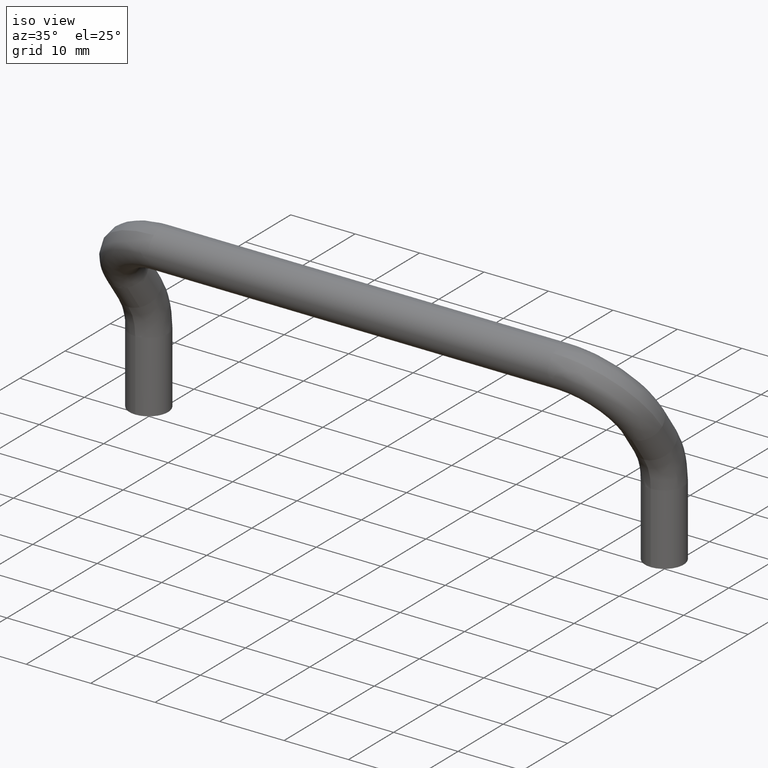
[diagram: clean part render]
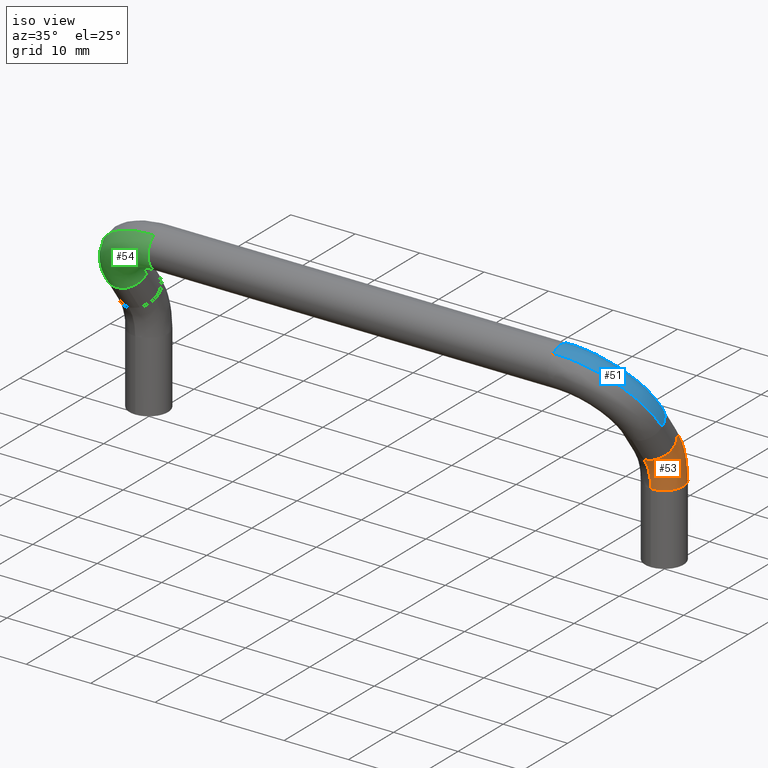
[diagram: same view with three faces highlighted in distinct colors, each labeled with its STEP entity id]
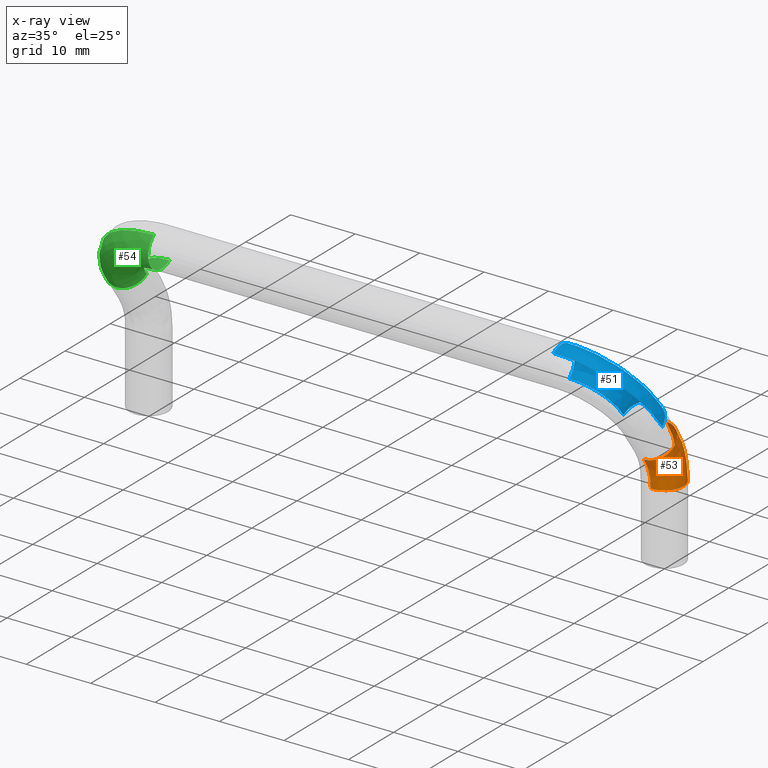
[diagram: x-ray of the same camera — body ghosted, the three highlighted faces saturated]
A machine part, iso view with three faces highlighted in distinct colors.
The next image is the same camera in x-ray (body ghosted, the three faces saturated) — at least one of them is partly hidden behind the body in this view.
Their STEP definitions:

[orange] entity #53 — the highlighted face is a freeform B-spline surface patch.
#53=ADVANCED_FACE('',(#199),#198,.T.);
#198=( BOUNDED_SURFACE() B_SPLINE_SURFACE( 2,2,((#490,#491,#492),(#493,#494,#495),(#496,#497,#498),(#499,#500,#501),(#502,#503,#504)), .UNSPECIFIED.,.F.,.F.,.F.) B_SPLINE_SURFACE_WITH_KNOTS((3,2,3),(3,3),(0.00000000000E+00,1.57079632679E+00,3.14159265359E+00),(0.00000000000E+00,1.14287214410E+00), .UNSPECIFIED. ) GEOMETRIC_REPRESENTATION_ITEM() RATIONAL_B_SPLINE_SURFACE(((1.00000000000E+00,8.41125156798E-01,1.00000000000E+00),(7.07106781187E-01,5.94765302199E-01,7.07106781187E-01),(1.00000000000E+00,8.41125156798E-01,1.00000000000E+00),(7.07106781187E-01,5.94765302199E-01,7.07106781187E-01),(1.00000000000E+00,8.41125156798E-01,1.00000000000E+00))) REPRESENTATION_ITEM('') SURFACE() );
#199=FACE_OUTER_BOUND('',#505,.T.);
#490=CARTESIAN_POINT('',(4.00000000001E+01,4.80976282318E+00,-1.76239206363E+00));
#491=CARTESIAN_POINT('',(4.00000000001E+01,1.30000000000E+01,-5.49804915882E+00));
#492=CARTESIAN_POINT('',(4.00000000001E+01,1.30000000000E+01,-1.44999999999E+01));
#493=CARTESIAN_POINT('',(4.30000000001E+01,4.80976282318E+00,-1.76239206363E+00));
#494=CARTESIAN_POINT('',(4.30000000001E+01,1.30000000000E+01,-5.49804915882E+00));
#495=CARTESIAN_POINT('',(4.30000000001E+01,1.30000000000E+01,-1.44999999999E+01));
#496=CARTESIAN_POINT('',(4.30000000001E+01,3.56481364679E+00,-4.49187947855E+00));
#497=CARTESIAN_POINT('',(4.30000000001E+01,1.00000000000E+01,-7.42703862477E+00));
#498=CARTESIAN_POINT('',(4.30000000001E+01,1.00000000000E+01,-1.44999999999E+01));
#499=CARTESIAN_POINT('',(4.30000000001E+01,2.31986447039E+00,-7.22136689347E+00));
#500=CARTESIAN_POINT('',(4.30000000001E+01,7.00000000000E+00,-9.35602809071E+00));
#501=CARTESIAN_POINT('',(4.30000000001E+01,7.00000000000E+00,-1.44999999999E+01));
#502=CARTESIAN_POINT('',(4.00000000001E+01,2.31986447039E+00,-7.22136689347E+00));
#503=CARTESIAN_POINT('',(4.00000000001E+01,7.00000000000E+00,-9.35602809071E+00));
#504=CARTESIAN_POINT('',(4.00000000001E+01,7.00000000000E+00,-1.44999999999E+01));
#505=EDGE_LOOP('',(#665,#666,#667,#668));
#665=ORIENTED_EDGE('',*,*,#774,.T.);
#666=ORIENTED_EDGE('',*,*,#771,.T.);
#667=ORIENTED_EDGE('',*,*,#775,.F.);
#668=ORIENTED_EDGE('',*,*,#773,.F.);
#771=EDGE_CURVE('',#1049,#1042,#1050,.T.);
#773=EDGE_CURVE('',#1056,#1035,#1063,.T.);
#774=EDGE_CURVE('',#1056,#1049,#1069,.T.);
#775=EDGE_CURVE('',#1035,#1042,#1075,.T.);
#1035=VERTEX_POINT('',#1374);
#1042=VERTEX_POINT('',#1379);
#1049=VERTEX_POINT('',#1384);
#1050=(BOUNDED_CURVE() B_SPLINE_CURVE(2,(#1385,#1386,#1387),.UNSPECIFIED.,.F.,.F.) B_SPLINE_CURVE_WITH_KNOTS((3,3),(5.22908220817E-01,1.14287214410E+00),.UNSPECIFIED.) CURVE() GEOMETRIC_REPRESENTATION_ITEM() RATIONAL_B_SPLINE_CURVE((9.21135469345E-01,9.13816544037E-01,1.00000000000E+00)) REPRESENTATION_ITEM('') );
#1056=VERTEX_POINT('',#1388);
#1063=(BOUNDED_CURVE() B_SPLINE_CURVE(2,(#1393,#1394,#1395),.UNSPECIFIED.,.F.,.F.) B_SPLINE_CURVE_WITH_KNOTS((3,3),(5.22908217960E-01,1.14287214410E+00),.UNSPECIFIED.) CURVE() GEOMETRIC_REPRESENTATION_ITEM() RATIONAL_B_SPLINE_CURVE((9.21135469413E-01,9.13816543640E-01,1.00000000000E+00)) REPRESENTATION_ITEM('') );
#1069=CIRCLE('',#1399,3.00000000000E+00);
#1075=CIRCLE('',#1403,3.00000000000E+00);
#1374=CARTESIAN_POINT('',(3.99999999996E+01,1.30000000000E+01,-1.44999999999E+01));
#1379=CARTESIAN_POINT('',(4.00000000001E+01,7.00000000000E+00,-1.44999999999E+01));
#1384=CARTESIAN_POINT('',(4.00000000001E+01,5.50489233181E+00,-9.84313670460E+00));
#1385=CARTESIAN_POINT('',(4.00000000001E+01,5.50489234552E+00,-9.84313672371E+00));
#1386=CARTESIAN_POINT('',(4.00000000001E+01,7.00000000000E+00,-1.19315627222E+01));
#1387=CARTESIAN_POINT('',(4.00000000001E+01,7.00000000000E+00,-1.44999999999E+01));
#1388=CARTESIAN_POINT('',(4.00000009839E+01,1.03835615807E+01,-6.35048923310E+00));
#1393=CARTESIAN_POINT('',(4.00000000001E+01,1.03835615807E+01,-6.35048923314E+00));
#1394=CARTESIAN_POINT('',(4.00000000001E+01,1.30000000000E+01,-1.00052347412E+01));
#1395=CARTESIAN_POINT('',(4.00000000001E+01,1.30000000000E+01,-1.44999999999E+01));
#1396=CARTESIAN_POINT('',(4.00000000001E+01,7.94422695624E+00,-8.09681296885E+00));
#1397=DIRECTION('',(-6.72133811934E-15,5.82107911917E-01,-8.13111541477E-01));
#1398=DIRECTION('',(-0.00000000000E+00,-8.13111541477E-01,-5.82107911917E-01));
#1399=AXIS2_PLACEMENT_3D('',#1396,#1397,#1398);
#1400=CARTESIAN_POINT('',(4.00000000001E+01,1.00000000000E+01,-1.44999999999E+01));
#1401=DIRECTION('',(3.82217405874E-13,0.00000000000E+00,-1.00000000000E+00));
#1402=DIRECTION('',(-1.00000000000E+00,1.83690953073E-16,-3.82217405874E-13));
#1403=AXIS2_PLACEMENT_3D('',#1400,#1401,#1402);

[blue] entity #51 — the highlighted face is a freeform B-spline surface patch.
#51=ADVANCED_FACE('',(#179),#178,.T.);
#178=( BOUNDED_SURFACE() B_SPLINE_SURFACE( 2,2,((#438,#439,#440,#441,#442,#443,#444),(#445,#446,#447,#448,#449,#450,#451),(#452,#453,#454,#455,#456,#457,#458),(#459,#460,#461,#462,#463,#464,#465),(#466,#467,#468,#469,#470,#471,#472)), .UNSPECIFIED.,.F.,.F.,.F.) B_SPLINE_SURFACE_WITH_KNOTS((3,2,3),(3,2,2,3),(0.00000000000E+00,1.57079632679E+00,3.14159265359E+00),(1.56908603987E+00,1.57079632679E+00,3.14159265359E+00,3.14330294051E+00), .UNSPECIFIED. ) GEOMETRIC_REPRESENTATION_ITEM() RATIONAL_B_SPLINE_SURFACE(((9.99362888724E-01,9.99681097140E-01,1.00000000000E+00,7.07106781187E-01,1.00000000000E+00,9.99681097140E-01,9.99362888724E-01),(7.06656275483E-01,7.06881282811E-01,7.07106781187E-01,5.00000000000E-01,7.07106781187E-01,7.06881282811E-01,7.06656275483E-01),(9.99362888724E-01,9.99681097140E-01,1.00000000000E+00,7.07106781187E-01,1.00000000000E+00,9.99681097140E-01,9.99362888724E-01),(7.06656275483E-01,7.06881282811E-01,7.07106781187E-01,5.00000000000E-01,7.07106781187E-01,7.06881282811E-01,7.06656275483E-01),(9.99362888724E-01,9.99681097140E-01,1.00000000000E+00,7.07106781187E-01,1.00000000000E+00,9.99681097140E-01,9.99362888724E-01))) REPRESENTATION_ITEM('') SURFACE() );
#179=FACE_OUTER_BOUND('',#473,.T.);
#438=CARTESIAN_POINT('',(4.29999857650E+01,5.24973058371E+00,-4.33303299931E+00));
#439=CARTESIAN_POINT('',(4.30000000000E+01,5.24435089864E+00,-4.32551844070E+00));
#440=CARTESIAN_POINT('',(4.30000000000E+01,5.23897120719E+00,-4.31800387317E+00));
#441=CARTESIAN_POINT('',(4.30000000000E+01,-1.74632373576E+00,5.43933462443E+00));
#442=CARTESIAN_POINT('',(3.10000000001E+01,-1.74632373576E+00,5.43933462443E+00));
#443=CARTESIAN_POINT('',(3.09907582576E+01,-1.74632373576E+00,5.43933462443E+00));
#444=CARTESIAN_POINT('',(3.09815165260E+01,-1.74631544947E+00,5.43932304982E+00));
#445=CARTESIAN_POINT('',(4.29999857650E+01,7.68906520814E+00,-2.58670926355E+00));
#446=CARTESIAN_POINT('',(4.30000000000E+01,7.68368552307E+00,-2.57919470494E+00));
#447=CARTESIAN_POINT('',(4.30000000000E+01,7.67830583161E+00,-2.57168013742E+00));
#448=CARTESIAN_POINT('',(4.30000000000E+01,6.93010888671E-01,7.18565836018E+00));
#449=CARTESIAN_POINT('',(3.10000000001E+01,6.93010888671E-01,7.18565836018E+00));
#450=CARTESIAN_POINT('',(3.09907582576E+01,6.93010888671E-01,7.18565836018E+00));
#451=CARTESIAN_POINT('',(3.09815165260E+01,6.93019174953E-01,7.18564678557E+00));
#452=CARTESIAN_POINT('',(3.99999893237E+01,7.68637536401E+00,-2.58295198202E+00));
#453=CARTESIAN_POINT('',(4.00000000000E+01,7.68234060020E+00,-2.57731606306E+00));
#454=CARTESIAN_POINT('',(4.00000000000E+01,7.67830583161E+00,-2.57168013742E+00));
#455=CARTESIAN_POINT('',(4.00000000000E+01,2.43933462443E+00,4.74632373575E+00));
#456=CARTESIAN_POINT('',(3.10000000001E+01,2.43933462443E+00,4.74632373575E+00));
#457=CARTESIAN_POINT('',(3.09930686932E+01,2.43933462443E+00,4.74632373575E+00));
#458=CARTESIAN_POINT('',(3.09861373945E+01,2.43934083914E+00,4.74631505480E+00));
#459=CARTESIAN_POINT('',(3.69999928825E+01,7.68368551988E+00,-2.57919470048E+00));
#460=CARTESIAN_POINT('',(3.70000000000E+01,7.68099567734E+00,-2.57543742118E+00));
#461=CARTESIAN_POINT('',(3.70000000000E+01,7.67830583161E+00,-2.57168013742E+00));
#462=CARTESIAN_POINT('',(3.70000000000E+01,4.18565836018E+00,2.30698911133E+00));
#463=CARTESIAN_POINT('',(3.10000000001E+01,4.18565836018E+00,2.30698911133E+00));
#464=CARTESIAN_POINT('',(3.09953791288E+01,4.18565836018E+00,2.30698911133E+00));
#465=CARTESIAN_POINT('',(3.09907582630E+01,4.18566250332E+00,2.30698332402E+00));
#466=CARTESIAN_POINT('',(3.69999928825E+01,5.24435089545E+00,-4.32551843624E+00));
#467=CARTESIAN_POINT('',(3.70000000000E+01,5.24166105291E+00,-4.32176115693E+00));
#468=CARTESIAN_POINT('',(3.70000000000E+01,5.23897120719E+00,-4.31800387317E+00));
#469=CARTESIAN_POINT('',(3.70000000000E+01,1.74632373575E+00,5.60665375572E-01));
#470=CARTESIAN_POINT('',(3.10000000001E+01,1.74632373575E+00,5.60665375572E-01));
#471=CARTESIAN_POINT('',(3.09953791288E+01,1.74632373575E+00,5.60665375572E-01));
#472=CARTESIAN_POINT('',(3.09907582630E+01,1.74632787890E+00,5.60659588267E-01));
#473=EDGE_LOOP('',(#654,#655,#656,#657,#658,#659));
#654=ORIENTED_EDGE('',*,*,#765,.F.);
#655=ORIENTED_EDGE('',*,*,#766,.F.);
#656=ORIENTED_EDGE('',*,*,#761,.T.);
#657=ORIENTED_EDGE('',*,*,#767,.T.);
#658=ORIENTED_EDGE('',*,*,#768,.T.);
#659=ORIENTED_EDGE('',*,*,#764,.F.);
#761=EDGE_CURVE('',#981,#974,#982,.T.);
#764=EDGE_CURVE('',#995,#966,#1002,.T.);
#765=EDGE_CURVE('',#1008,#995,#1009,.T.);
#766=EDGE_CURVE('',#981,#1008,#1015,.T.);
#767=EDGE_CURVE('',#974,#1021,#1022,.T.);
#768=EDGE_CURVE('',#1021,#966,#1028,.T.);
#966=VERTEX_POINT('',#1325);
#974=VERTEX_POINT('',#1331);
#981=VERTEX_POINT('',#1336);
#982=(BOUNDED_CURVE() B_SPLINE_CURVE(2,(#1337,#1338,#1339),.UNSPECIFIED.,.F.,.F.) B_SPLINE_CURVE_WITH_KNOTS((3,3),(1.57079632679E+00,3.14159265359E+00),.UNSPECIFIED.) CURVE() GEOMETRIC_REPRESENTATION_ITEM() RATIONAL_B_SPLINE_CURVE((1.00000000000E+00,7.07106781187E-01,1.00000000000E+00)) REPRESENTATION_ITEM('') );
#995=VERTEX_POINT('',#1345);
#1002=(BOUNDED_CURVE() B_SPLINE_CURVE(3,(#1350,#1351,#1352,#1353,#1354),.UNSPECIFIED.,.F.,.F.) B_SPLINE_CURVE_WITH_KNOTS((4,1,4),(1.57079632678E+00,2.35619449019E+00,3.14159265361E+00),.UNSPECIFIED.) CURVE() GEOMETRIC_REPRESENTATION_ITEM() RATIONAL_B_SPLINE_CURVE((1.00000000000E+00,1.00000000000E+00,1.00000000000E+00,1.00000000000E+00,1.00000000000E+00)) REPRESENTATION_ITEM('') );
#1008=VERTEX_POINT('',#1355);
#1009=CIRCLE('',#1359,3.00000000000E+00);
#1015=CIRCLE('',#1363,3.00000000000E+00);
#1021=VERTEX_POINT('',#1364);
#1022=CIRCLE('',#1368,3.00000000000E+00);
#1028=CIRCLE('',#1372,3.00000000000E+00);
#1325=CARTESIAN_POINT('',(3.10000000001E+01,-1.74618414932E+00,5.43943454855E+00));
#1331=CARTESIAN_POINT('',(3.10000000001E+01,1.74632373576E+00,5.60665375574E-01));
#1336=CARTESIAN_POINT('',(3.70000000001E+01,5.23897119906E+00,-4.31800387916E+00));
#1337=CARTESIAN_POINT('',(3.70000000000E+01,5.23897120719E+00,-4.31800387317E+00));
#1338=CARTESIAN_POINT('',(3.70000000000E+01,1.74632373575E+00,5.60665375572E-01));
#1339=CARTESIAN_POINT('',(3.10000000001E+01,1.74632373575E+00,5.60665375572E-01));
#1345=CARTESIAN_POINT('',(4.30000000001E+01,5.23896956133E+00,-4.31800505162E+00));
#1350=CARTESIAN_POINT('',(4.30000000000E+01,5.23897120728E+00,-4.31800387331E+00));
#1351=CARTESIAN_POINT('',(4.30250591044E+01,3.43050762821E+00,-1.79186983806E+00));
#1352=CARTESIAN_POINT('',(4.04046583477E+01,-2.35554825864E-01,3.32903237293E+00));
#1353=CARTESIAN_POINT('',(3.41067496971E+01,-1.76091083873E+00,5.45971047148E+00));
#1354=CARTESIAN_POINT('',(3.09999999999E+01,-1.74632373576E+00,5.43933462443E+00));
#1355=CARTESIAN_POINT('',(4.00000009839E+01,7.67830583169E+00,-2.57168013754E+00));
#1356=CARTESIAN_POINT('',(4.00000000001E+01,5.23897120726E+00,-4.31800387329E+00));
#1357=DIRECTION('',(1.01511498893E-16,5.82107911917E-01,-8.13111541477E-01));
#1358=DIRECTION('',(-3.27933333178E-07,-8.13111541477E-01,-5.82107911917E-01));
#1359=AXIS2_PLACEMENT_3D('',#1356,#1357,#1358);
#1360=CARTESIAN_POINT('',(4.00000000001E+01,5.23897120726E+00,-4.31800387329E+00));
#1361=DIRECTION('',(1.01511498893E-16,5.82107911917E-01,-8.13111541477E-01));
#1362=DIRECTION('',(-3.27933333178E-07,-8.13111541477E-01,-5.82107911917E-01));
#1363=AXIS2_PLACEMENT_3D('',#1360,#1361,#1362);
#1364=CARTESIAN_POINT('',(3.10000000001E+01,1.50800148035E-04,5.99999999621E+00));
#1365=CARTESIAN_POINT('',(3.10000000001E+01,5.20417042793E-14,3.00000000000E+00));
#1366=DIRECTION('',(1.00000000000E+00,-2.06806279116E-15,2.88875246003E-15));
#1367=DIRECTION('',(2.88875246003E-15,3.88578058619E-16,-1.00000000000E+00));
#1368=AXIS2_PLACEMENT_3D('',#1365,#1366,#1367);
#1369=CARTESIAN_POINT('',(3.10000000001E+01,5.20417042793E-14,3.00000000000E+00));
#1370=DIRECTION('',(1.00000000000E+00,-2.06806279116E-15,2.88875246003E-15));
#1371=DIRECTION('',(2.88875246003E-15,3.88578058619E-16,-1.00000000000E+00));
#1372=AXIS2_PLACEMENT_3D('',#1369,#1370,#1371);

[green] entity #54 — the highlighted face is a freeform B-spline surface patch.
#54=ADVANCED_FACE('',(#209),#208,.T.);
#208=( BOUNDED_SURFACE() B_SPLINE_SURFACE( 2,2,((#506,#507,#508,#509,#510),(#511,#512,#513,#514,#515),(#516,#517,#518,#519,#520),(#521,#522,#523,#524,#525),(#526,#527,#528,#529,#530)), .UNSPECIFIED.,.F.,.F.,.F.) B_SPLINE_SURFACE_WITH_KNOTS((3,2,3),(3,2,3),(-3.14159265359E+00,-1.57079632679E+00,0.00000000000E+00),(3.13988236667E+00,3.14159265359E+00,4.71238898038E+00), .UNSPECIFIED. ) GEOMETRIC_REPRESENTATION_ITEM() RATIONAL_B_SPLINE_SURFACE(((9.99362888724E-01,9.99681097140E-01,1.00000000000E+00,7.07106781187E-01,1.00000000000E+00),(7.06656275483E-01,7.06881282811E-01,7.07106781187E-01,5.00000000000E-01,7.07106781186E-01),(9.99362888724E-01,9.99681097140E-01,1.00000000000E+00,7.07106781187E-01,1.00000000000E+00),(7.06656275483E-01,7.06881282811E-01,7.07106781187E-01,5.00000000000E-01,7.07106781186E-01),(9.99362888724E-01,9.99681097140E-01,1.00000000000E+00,7.07106781187E-01,1.00000000000E+00))) REPRESENTATION_ITEM('') SURFACE() );
#209=FACE_OUTER_BOUND('',#531,.T.);
#506=CARTESIAN_POINT('',(-3.09907582631E+01,1.74632787894E+00,5.60659588210E-01));
#507=CARTESIAN_POINT('',(-3.09953791289E+01,1.74632373580E+00,5.60665375515E-01));
#508=CARTESIAN_POINT('',(-3.10000000002E+01,1.74632373580E+00,5.60665375515E-01));
#509=CARTESIAN_POINT('',(-3.70000000001E+01,1.74632373579E+00,5.60665375510E-01));
#510=CARTESIAN_POINT('',(-3.70000000001E+01,5.23897120726E+00,-4.31800387328E+00));
#511=CARTESIAN_POINT('',(-3.09907582631E+01,-6.93006745488E-01,-1.18566414755E+00));
#512=CARTESIAN_POINT('',(-3.09953791289E+01,-6.93010888629E-01,-1.18565836024E+00));
#513=CARTESIAN_POINT('',(-3.10000000002E+01,-6.93010888629E-01,-1.18565836024E+00));
#514=CARTESIAN_POINT('',(-3.70000000001E+01,-6.93010888636E-01,-1.18565836025E+00));
#515=CARTESIAN_POINT('',(-3.70000000001E+01,2.79963658283E+00,-6.06432760904E+00));
#516=CARTESIAN_POINT('',(-3.09861373946E+01,-2.43932840967E+00,1.25366758323E+00));
#517=CARTESIAN_POINT('',(-3.09930686933E+01,-2.43933462439E+00,1.25367626419E+00));
#518=CARTESIAN_POINT('',(-3.10000000002E+01,-2.43933462439E+00,1.25367626419E+00));
#519=CARTESIAN_POINT('',(-4.00000000001E+01,-2.43933462440E+00,1.25367626418E+00));
#520=CARTESIAN_POINT('',(-4.00000000001E+01,2.79963658283E+00,-6.06432760904E+00));
#521=CARTESIAN_POINT('',(-3.09815165260E+01,-4.18565007386E+00,3.69299931400E+00));
#522=CARTESIAN_POINT('',(-3.09907582576E+01,-4.18565836014E+00,3.69301088861E+00));
#523=CARTESIAN_POINT('',(-3.10000000002E+01,-4.18565836014E+00,3.69301088861E+00));
#524=CARTESIAN_POINT('',(-4.30000000001E+01,-4.18565836016E+00,3.69301088860E+00));
#525=CARTESIAN_POINT('',(-4.30000000001E+01,2.79963658282E+00,-6.06432760904E+00));
#526=CARTESIAN_POINT('',(-3.09815165260E+01,-1.74631544943E+00,5.43932304976E+00));
#527=CARTESIAN_POINT('',(-3.09907582576E+01,-1.74632373571E+00,5.43933462437E+00));
#528=CARTESIAN_POINT('',(-3.10000000002E+01,-1.74632373571E+00,5.43933462437E+00));
#529=CARTESIAN_POINT('',(-4.30000000001E+01,-1.74632373573E+00,5.43933462436E+00));
#530=CARTESIAN_POINT('',(-4.30000000001E+01,5.23897120725E+00,-4.31800387328E+00));
#531=EDGE_LOOP('',(#669,#670,#671,#672,#673,#674,#675));
#669=ORIENTED_EDGE('',*,*,#776,.T.);
#670=ORIENTED_EDGE('',*,*,#777,.T.);
#671=ORIENTED_EDGE('',*,*,#778,.T.);
#672=ORIENTED_EDGE('',*,*,#779,.F.);
#673=ORIENTED_EDGE('',*,*,#780,.F.);
#674=ORIENTED_EDGE('',*,*,#781,.F.);
#675=ORIENTED_EDGE('',*,*,#782,.T.);
#776=EDGE_CURVE('',#1081,#1082,#1083,.T.);
#777=EDGE_CURVE('',#1082,#1089,#1090,.T.);
#778=EDGE_CURVE('',#1089,#1096,#1097,.T.);
#779=EDGE_CURVE('',#1103,#1096,#1104,.T.);
#780=EDGE_CURVE('',#1110,#1103,#1111,.T.);
#781=EDGE_CURVE('',#1117,#1110,#1118,.T.);
#782=EDGE_CURVE('',#1117,#1081,#1124,.T.);
#1081=VERTEX_POINT('',#1404);
#1082=VERTEX_POINT('',#1405);
#1083=CIRCLE('',#1409,3.00000000000E+00);
#1089=VERTEX_POINT('',#1410);
#1090=CIRCLE('',#1414,3.00000000000E+00);
#1096=VERTEX_POINT('',#1415);
#1097=CIRCLE('',#1419,3.00000000000E+00);
#1103=VERTEX_POINT('',#1420);
#1104=(BOUNDED_CURVE() B_SPLINE_CURVE(2,(#1421,#1422,#1423),.UNSPECIFIED.,.F.,.F.) B_SPLINE_CURVE_WITH_KNOTS((3,3),(3.14159265359E+00,4.71238898038E+00),.UNSPECIFIED.) CURVE() GEOMETRIC_REPRESENTATION_ITEM() RATIONAL_B_SPLINE_CURVE((1.00000000000E+00,7.07106781187E-01,1.00000000000E+00)) REPRESENTATION_ITEM('') );
#1110=VERTEX_POINT('',#1424);
#1111=CIRCLE('',#1428,3.00000000000E+00);
#1117=VERTEX_POINT('',#1429);
#1118=CIRCLE('',#1433,3.00000000000E+00);
#1124=(BOUNDED_CURVE() B_SPLINE_CURVE(3,(#1434,#1435,#1436,#1437,#1438),.UNSPECIFIED.,.F.,.F.) B_SPLINE_CURVE_WITH_KNOTS((4,1,4),(3.14159265359E+00,3.92699081698E+00,4.71238898037E+00),.UNSPECIFIED.) CURVE() GEOMETRIC_REPRESENTATION_ITEM() RATIONAL_B_SPLINE_CURVE((1.00000000000E+00,1.00000000000E+00,1.00000000000E+00,1.00000000000E+00,1.00000000000E+00)) REPRESENTATION_ITEM('') );
#1404=CARTESIAN_POINT('',(-4.30000000001E+01,5.23897118423E+00,-4.31800388978E+00));
#1405=CARTESIAN_POINT('',(-3.99999990153E+01,2.79963658283E+00,-6.06432760904E+00));
#1406=CARTESIAN_POINT('',(-4.00000000001E+01,5.23897120726E+00,-4.31800387329E+00));
#1407=DIRECTION('',(4.14162847609E-17,-5.82107911917E-01,8.13111541477E-01));
#1408=DIRECTION('',(3.28266668803E-07,-8.13111541477E-01,-5.82107911917E-01));
#1409=AXIS2_PLACEMENT_3D('',#1406,#1407,#1408);
#1410=CARTESIAN_POINT('',(-3.84999966748E+01,3.12644701525E+00,-5.83036347410E+00));
#1411=CARTESIAN_POINT('',(-4.00000000001E+01,5.23897120726E+00,-4.31800387329E+00));
#1412=DIRECTION('',(4.14162847609E-17,-5.82107911917E-01,8.13111541477E-01));
#1413=DIRECTION('',(3.28266668803E-07,-8.13111541477E-01,-5.82107911917E-01));
#1414=AXIS2_PLACEMENT_3D('',#1411,#1412,#1413);
#1415=CARTESIAN_POINT('',(-3.70000000001E+01,5.23897120726E+00,-4.31800387329E+00));
#1416=CARTESIAN_POINT('',(-4.00000000001E+01,5.23897120726E+00,-4.31800387329E+00));
#1417=DIRECTION('',(4.14162847609E-17,-5.82107911917E-01,8.13111541477E-01));
#1418=DIRECTION('',(3.28266668803E-07,-8.13111541477E-01,-5.82107911917E-01));
#1419=AXIS2_PLACEMENT_3D('',#1416,#1417,#1418);
#1420=CARTESIAN_POINT('',(-3.10000000001E+01,1.74632373899E+00,5.60665377888E-01));
#1421=CARTESIAN_POINT('',(-3.10000000002E+01,1.74632373580E+00,5.60665375515E-01));
#1422=CARTESIAN_POINT('',(-3.70000000001E+01,1.74632373579E+00,5.60665375510E-01));
#1423=CARTESIAN_POINT('',(-3.70000000001E+01,5.23897120726E+00,-4.31800387329E+00));
#1424=CARTESIAN_POINT('',(-3.10000000001E+01,-1.48404366160E-07,3.64982196328E-15));
#1425=CARTESIAN_POINT('',(-3.10000000001E+01,5.20417042793E-14,3.00000000000E+00));
#1426=DIRECTION('',(1.00000000000E+00,2.01959252071E-15,-2.36847578587E-15));
#1427=DIRECTION('',(3.10145578270E-15,-5.82107912997E-01,8.13111540704E-01));
#1428=AXIS2_PLACEMENT_3D('',#1425,#1426,#1427);
#1429=CARTESIAN_POINT('',(-3.10000000001E+01,-1.74632373899E+00,5.43933462211E+00));
#1430=CARTESIAN_POINT('',(-3.10000000001E+01,5.20417042793E-14,3.00000000000E+00));
#1431=DIRECTION('',(1.00000000000E+00,2.01959252071E-15,-2.36847578587E-15));
#1432=DIRECTION('',(3.10145578270E-15,-5.82107912997E-01,8.13111540704E-01));
#1433=AXIS2_PLACEMENT_3D('',#1430,#1431,#1432);
#1434=CARTESIAN_POINT('',(-3.10000000001E+01,-1.74632373571E+00,5.43933462437E+00));
#1435=CARTESIAN_POINT('',(-3.41067496972E+01,-1.76091083867E+00,5.45971047139E+00));
#1436=CARTESIAN_POINT('',(-4.04046583477E+01,-2.35554825842E-01,3.32903237288E+00));
#1437=CARTESIAN_POINT('',(-4.30250591045E+01,3.43050762811E+00,-1.79186983795E+00));
#1438=CARTESIAN_POINT('',(-4.30000000001E+01,5.23897120715E+00,-4.31800387315E+00));